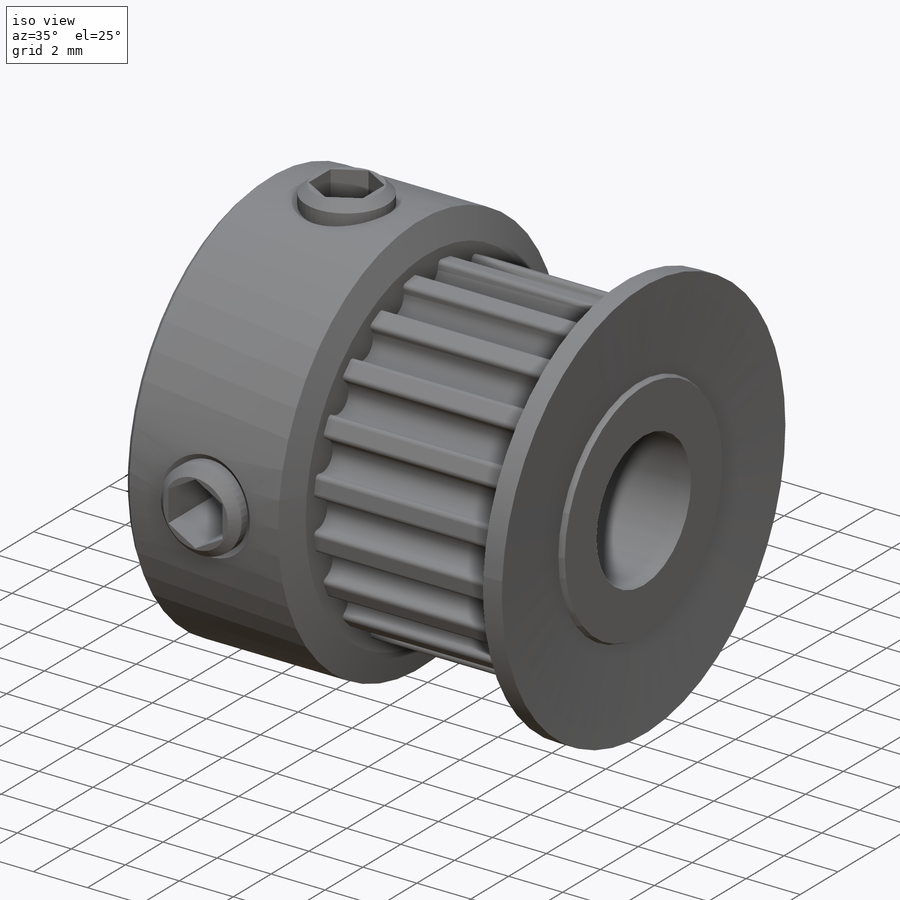
[diagram: iso view]
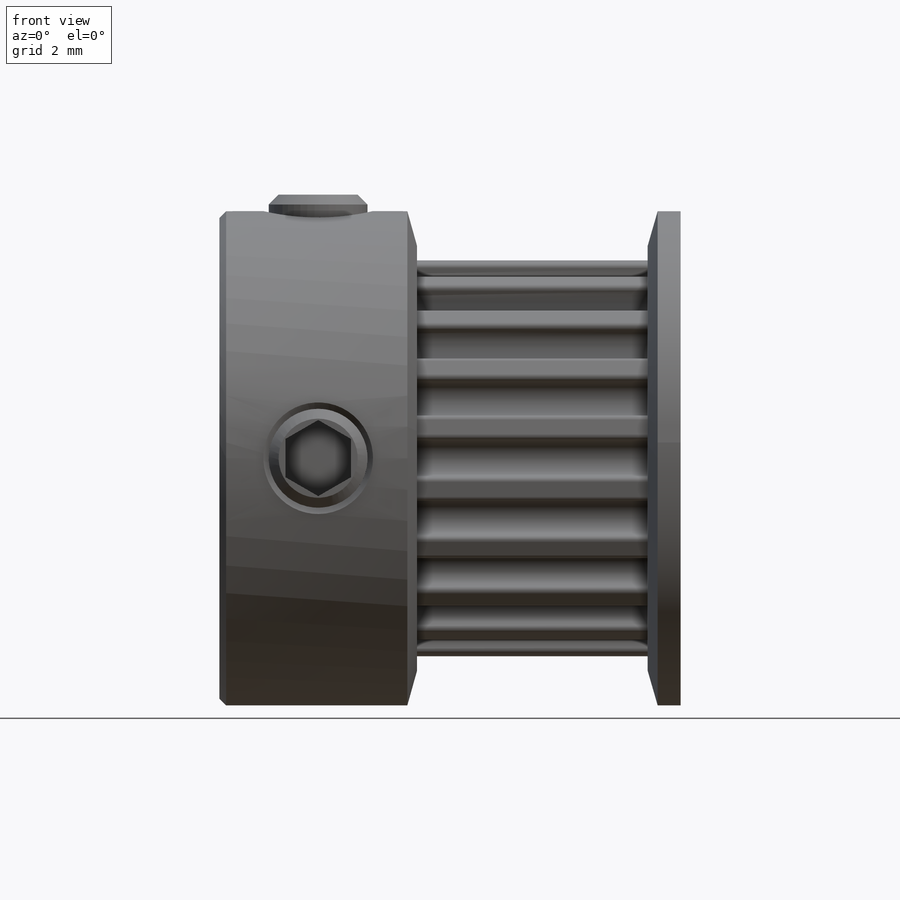
[diagram: front view]
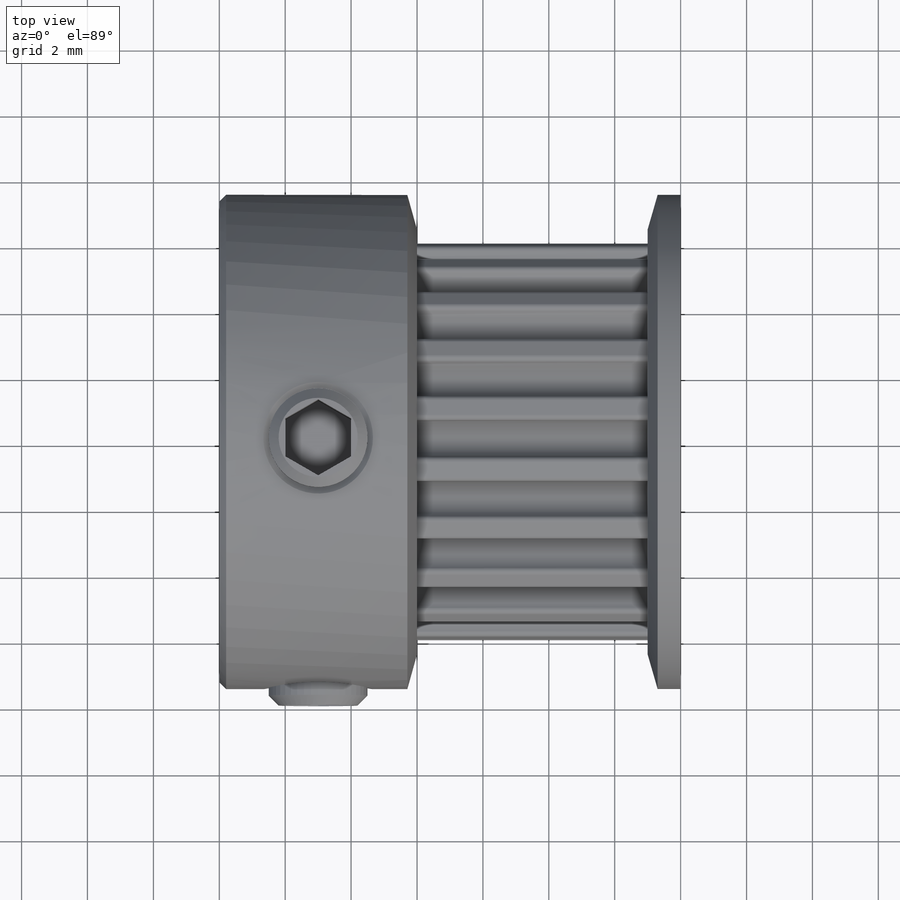
[diagram: top view]
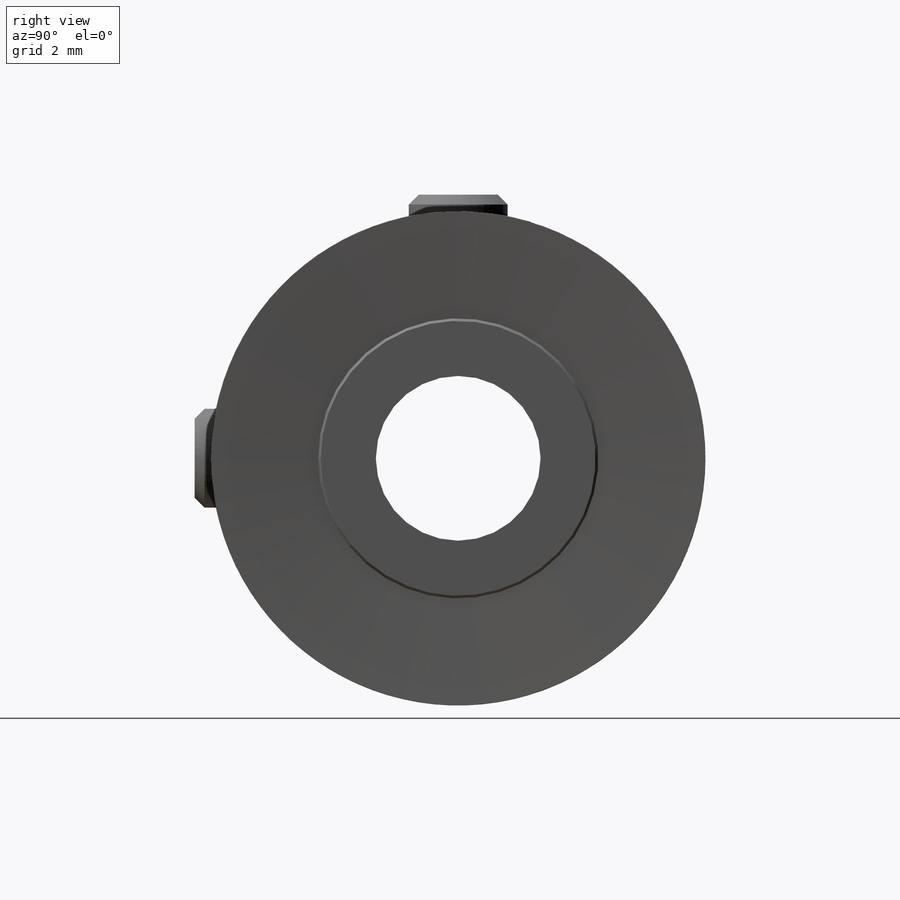
[diagram: right view]
SOLIDWORKS PART (.sldprt)
format: sldprt  version: not decoded by parser v0  size: 531,968 bytes
history: native  units: mm
features: sketch x7, cut_extrude x5, pattern_circular x2, chamfer x2, material x1, revolve x1, fillet x1, plane x1, extrude x1 (+12 scaffold rows collapsed)
feature tree (33):
  scaffold x12  (default folders/planes/origin — collapsed)
  material  "Material <not specified>"
  sketch  "Sketch1"  dims[c1.D1=5.5mm c1.D2=7.5mm c1.D3=14.0mm c1.D4=7.5mm c1.D5=14.0mm c1.D6=7.0mm c1.D7=6.05mm c1.D8=4.25mm c2.D2=~7.295607mm c3.D2=45.0deg c3.D9=4.17mm c3.D10=3.17mm c3.D11=0.08mm c4.D11=45.0deg c5.D11=0.08mm c6.D11=45.0deg]
  revolve  "Revolve1"  Angle=360deg
  sketch  "Sketch2"  dims[D1=5.0mm]
  cut_extrude  "Cut-Extrude1"  [1 undecoded]
  sketch  "Sketch3"  dims[D1=1.1mm D2=5.86mm]
  cut_extrude  "Cut-Extrude2"  [1 undecoded]
  fillet  "Fillet1"  Radius=0.15mm
  pattern_circular  "CirPattern1"  Count=20 Angle=360deg
  sketch  "Sketch4"  dims[D1=3.0mm D2=3.0mm]
  cut_extrude  "Cut-Extrude3"  Depth=10mm
  sketch  "Sketch5"  dims[D1=3.0mm D2=3.0mm]
  cut_extrude  "Cut-Extrude4"  Depth=10mm
  chamfer  "Chamfer1"  Distance=0.2mm Angle=45deg
  plane  "Plane1"  Offset=8mm
  sketch  "Sketch6"
  extrude  "Boss-Extrude1"  Depth=5mm
  sketch  "Sketch7"  dims[D1=2.0mm]
  cut_extrude  "Cut-Extrude5"  Depth=2.5mm
  chamfer  "Chamfer2"  Distance=0.3mm Angle=45deg
  pattern_circular  "CirPattern3"  Count=2 Angle=90deg
decode coverage: 16 of 19 modeling features carry decoded parameters
note: ~ marks probable driven/reference dimensions
note: 2 parameter values undecoded
note: suppression state not decoded; provenance and decode notes live in map.json
